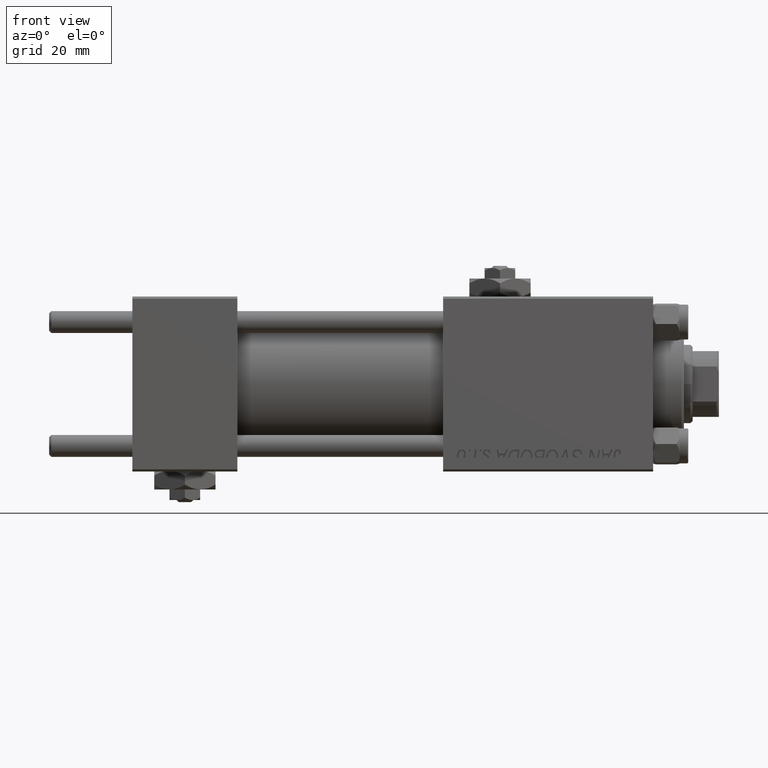
[diagram: clean part render]
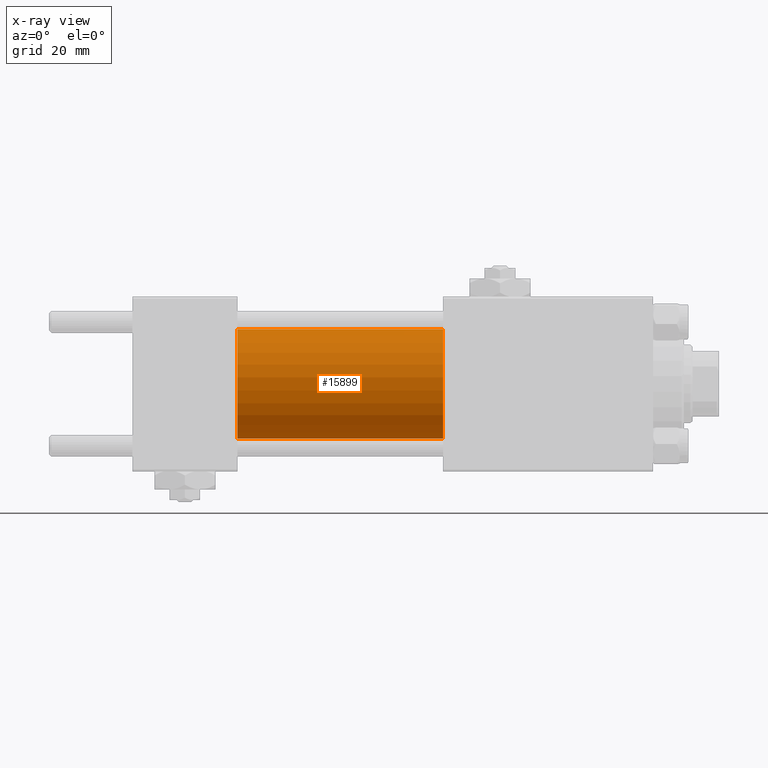
[diagram: x-ray — body ghosted, one internal face saturated and labeled with its STEP entity id]
A machine part, front view, then the same camera in x-ray: the body is ghosted and one INTERNAL B-rep face — a face not visible from any outside direction — is saturated and labeled: STEP entity #15899.
In plain terms, the highlighted cylindrical surface (partial cylindrical patch) has radius 12.5 mm, axis along (-1, -0, -0).
Its self-contained STEP definition (entity closure, byte-faithful):
#890 = ORIENTED_EDGE ( 'NONE', *, *, #1679, .T. ) ;
#1020 = VERTEX_POINT ( 'NONE', #26882 ) ;
#1679 = EDGE_CURVE ( 'NONE', #42217, #8135, #39779, .T. ) ;
#1791 = DIRECTION ( 'NONE',  ( -1.000000000000000000, -0.000000000000000000, -0.000000000000000000 ) ) ;
#2631 = CYLINDRICAL_SURFACE ( 'NONE', #19913, 12.49999999999999645 ) ;
#2864 = AXIS2_PLACEMENT_3D ( 'NONE', #5113, #33738, #13521 ) ;
#5113 = CARTESIAN_POINT ( 'NONE',  ( 71.00000000000001421, 0.000000000000000000, 0.000000000000000000 ) ) ;
#5730 = CARTESIAN_POINT ( 'NONE',  ( 71.00000000000001421, 1.530808498934191127E-15, -12.49999999999999645 ) ) ;
#5891 = CARTESIAN_POINT ( 'NONE',  ( 71.00000000000001421, 0.000000000000000000, 12.49999999999999645 ) ) ;
#7459 = DIRECTION ( 'NONE',  ( 1.000000000000000000, 0.000000000000000000, 0.000000000000000000 ) ) ;
#8135 = VERTEX_POINT ( 'NONE', #29431 ) ;
#8746 = VERTEX_POINT ( 'NONE', #10944 ) ;
#10944 = CARTESIAN_POINT ( 'NONE',  ( 24.00000000000000000, 1.530808498934191127E-15, -12.49999999999999645 ) ) ;
#11934 = DIRECTION ( 'NONE',  ( 0.000000000000000000, 0.000000000000000000, -1.000000000000000000 ) ) ;
#13521 = DIRECTION ( 'NONE',  ( 0.000000000000000000, 0.000000000000000000, -1.000000000000000000 ) ) ;
#13882 = ORIENTED_EDGE ( 'NONE', *, *, #21104, .F. ) ;
#14170 = CIRCLE ( 'NONE', #41822, 12.49999999999999645 ) ;
#15899 = ADVANCED_FACE ( 'NONE', ( #50654 ), #2631, .F. ) ;
#16280 = ORIENTED_EDGE ( 'NONE', *, *, #21941, .F. ) ;
#17937 = CARTESIAN_POINT ( 'NONE',  ( 71.00000000000001421, 0.000000000000000000, 12.49999999999999645 ) ) ;
#18647 = DIRECTION ( 'NONE',  ( 0.000000000000000000, 0.000000000000000000, 1.000000000000000000 ) ) ;
#19165 = CARTESIAN_POINT ( 'NONE',  ( 71.00000000000001421, 0.000000000000000000, 0.000000000000000000 ) ) ;
#19229 = ORIENTED_EDGE ( 'NONE', *, *, #35644, .T. ) ;
#19282 = CARTESIAN_POINT ( 'NONE',  ( 24.00000000000000000, 0.000000000000000000, 0.000000000000000000 ) ) ;
#19913 = AXIS2_PLACEMENT_3D ( 'NONE', #19165, #39096, #18647 ) ;
#21104 = EDGE_CURVE ( 'NONE', #1020, #8746, #14170, .T. ) ;
#21941 = EDGE_CURVE ( 'NONE', #42217, #1020, #26859, .T. ) ;
#26859 = LINE ( 'NONE', #17937, #48559 ) ;
#26882 = CARTESIAN_POINT ( 'NONE',  ( 24.00000000000000000, 0.000000000000000000, 12.49999999999999645 ) ) ;
#29431 = CARTESIAN_POINT ( 'NONE',  ( 71.00000000000001421, 1.530808498934191127E-15, -12.49999999999999645 ) ) ;
#33738 = DIRECTION ( 'NONE',  ( 1.000000000000000000, 0.000000000000000000, 0.000000000000000000 ) ) ;
#35644 = EDGE_CURVE ( 'NONE', #8135, #8746, #37751, .T. ) ;
#37751 = LINE ( 'NONE', #5730, #48194 ) ;
#39096 = DIRECTION ( 'NONE',  ( -1.000000000000000000, -0.000000000000000000, -0.000000000000000000 ) ) ;
#39779 = CIRCLE ( 'NONE', #2864, 12.49999999999999645 ) ;
#41822 = AXIS2_PLACEMENT_3D ( 'NONE', #19282, #7459, #11934 ) ;
#42217 = VERTEX_POINT ( 'NONE', #5891 ) ;
#46017 = DIRECTION ( 'NONE',  ( -1.000000000000000000, -0.000000000000000000, -0.000000000000000000 ) ) ;
#48194 = VECTOR ( 'NONE', #1791, 1000.000000000000000 ) ;
#48479 = EDGE_LOOP ( 'NONE', ( #890, #19229, #13882, #16280 ) ) ;
#48559 = VECTOR ( 'NONE', #46017, 1000.000000000000000 ) ;
#50654 = FACE_OUTER_BOUND ( 'NONE', #48479, .T. ) ;